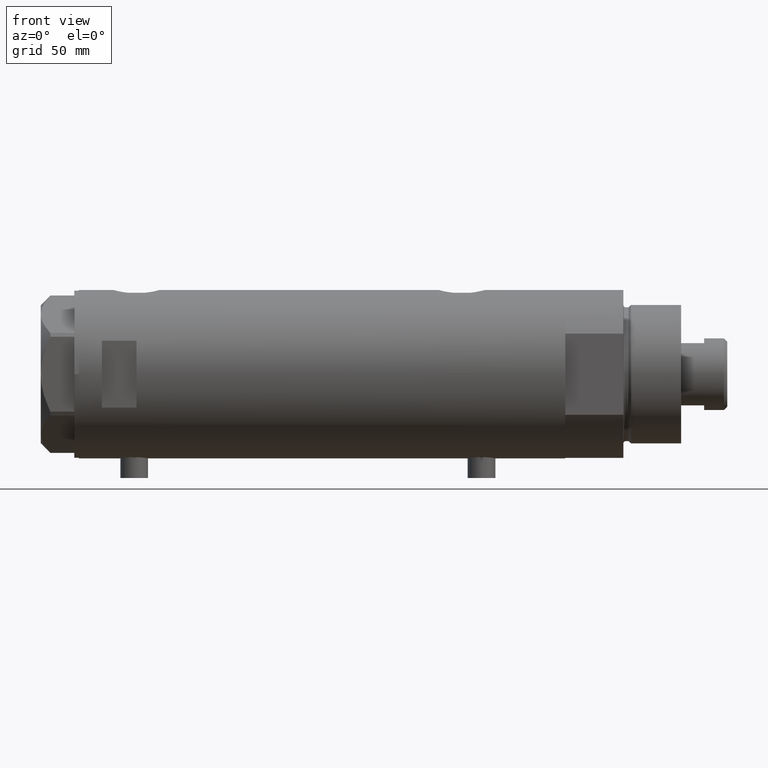
[diagram: clean part render]
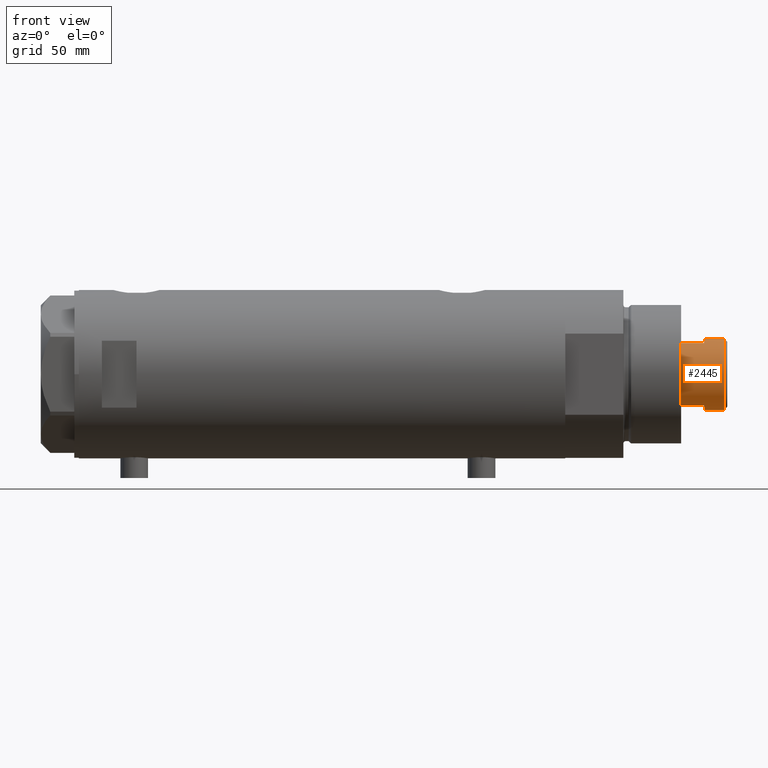
[diagram: same view with one face highlighted and labeled with its STEP entity id]
A machine part, front view. The second image highlights one B-rep face of the part: STEP entity #2445.
In plain terms, the highlighted cylindrical surface (edge-blend (fillet) strip) has radius 15.5 mm, axis along (-1, -0, 0).
Its self-contained STEP definition (entity closure, byte-faithful):
#82 = CIRCLE ( 'NONE', #1284, 15.49999999999999822 ) ;
#187 = VECTOR ( 'NONE', #2639, 1000.000000000000000 ) ;
#232 = ORIENTED_EDGE ( 'NONE', *, *, #4071, .T. ) ;
#266 = CARTESIAN_POINT ( 'NONE',  ( 13.48630416385452691, -7.639999999999800728, 235.0000000000000284 ) ) ;
#277 = DIRECTION ( 'NONE',  ( -1.000000000000000000, 0.000000000000000000, 0.000000000000000000 ) ) ;
#292 = ORIENTED_EDGE ( 'NONE', *, *, #4458, .T. ) ;
#407 = AXIS2_PLACEMENT_3D ( 'NONE', #2352, #4114, #277 ) ;
#463 = CARTESIAN_POINT ( 'NONE',  ( -15.49999999999999822, 0.000000000000000000, 245.0000000000000284 ) ) ;
#480 = VERTEX_POINT ( 'NONE', #1744 ) ;
#580 = VERTEX_POINT ( 'NONE', #2843 ) ;
#641 = DIRECTION ( 'NONE',  ( 1.000000000000000000, 0.000000000000000000, 0.000000000000000000 ) ) ;
#657 = CARTESIAN_POINT ( 'NONE',  ( -13.48630416385452691, -7.640000000000001457, 245.0000000000000284 ) ) ;
#758 = EDGE_CURVE ( 'NONE', #1408, #2294, #3752, .T. ) ;
#878 = ORIENTED_EDGE ( 'NONE', *, *, #758, .T. ) ;
#910 = AXIS2_PLACEMENT_3D ( 'NONE', #3099, #4473, #3515 ) ;
#911 = ORIENTED_EDGE ( 'NONE', *, *, #1883, .T. ) ;
#920 = CARTESIAN_POINT ( 'NONE',  ( 15.49999999999999822, 1.898202538678397163E-15, 245.0000000000000284 ) ) ;
#937 = DIRECTION ( 'NONE',  ( 0.000000000000000000, 0.000000000000000000, 1.000000000000000000 ) ) ;
#1096 = ORIENTED_EDGE ( 'NONE', *, *, #2104, .F. ) ;
#1252 = EDGE_CURVE ( 'NONE', #1986, #4334, #2588, .T. ) ;
#1269 = LINE ( 'NONE', #4364, #187 ) ;
#1284 = AXIS2_PLACEMENT_3D ( 'NONE', #3038, #2361, #641 ) ;
#1349 = VECTOR ( 'NONE', #3437, 1000.000000000000000 ) ;
#1408 = VERTEX_POINT ( 'NONE', #2235 ) ;
#1475 = ORIENTED_EDGE ( 'NONE', *, *, #2776, .F. ) ;
#1659 = CIRCLE ( 'NONE', #3883, 15.49999999999999822 ) ;
#1664 = DIRECTION ( 'NONE',  ( 0.000000000000000000, 0.000000000000000000, 1.000000000000000000 ) ) ;
#1744 = CARTESIAN_POINT ( 'NONE',  ( 15.49999999999999822, 1.898202538678397163E-15, 253.5999999999999943 ) ) ;
#1864 = LINE ( 'NONE', #920, #1349 ) ;
#1876 = CARTESIAN_POINT ( 'NONE',  ( -15.50000000000000178, 0.000000000000000000, 245.0000000000000284 ) ) ;
#1883 = EDGE_CURVE ( 'NONE', #2294, #3781, #1659, .T. ) ;
#1986 = VERTEX_POINT ( 'NONE', #3908 ) ;
#2010 = CARTESIAN_POINT ( 'NONE',  ( -13.48630416385452513, -7.639999999999807834, 235.0000000000000284 ) ) ;
#2032 = DIRECTION ( 'NONE',  ( -0.000000000000000000, -0.000000000000000000, -1.000000000000000000 ) ) ;
#2104 = EDGE_CURVE ( 'NONE', #580, #3781, #1269, .T. ) ;
#2122 = DIRECTION ( 'NONE',  ( -0.000000000000000000, -0.000000000000000000, -1.000000000000000000 ) ) ;
#2235 = CARTESIAN_POINT ( 'NONE',  ( -13.48630416385452335, -7.640000000000004121, 245.0000000000000284 ) ) ;
#2294 = VERTEX_POINT ( 'NONE', #2010 ) ;
#2352 = CARTESIAN_POINT ( 'NONE',  ( 0.000000000000000000, 0.000000000000000000, 245.0000000000000284 ) ) ;
#2361 = DIRECTION ( 'NONE',  ( 0.000000000000000000, 0.000000000000000000, -1.000000000000000000 ) ) ;
#2445 = ADVANCED_FACE ( 'NONE', ( #2741 ), #2673, .T. ) ;
#2588 = LINE ( 'NONE', #463, #3029 ) ;
#2639 = DIRECTION ( 'NONE',  ( -0.000000000000000000, -0.000000000000000000, -1.000000000000000000 ) ) ;
#2673 = CYLINDRICAL_SURFACE ( 'NONE', #407, 15.49999999999999822 ) ;
#2680 = CARTESIAN_POINT ( 'NONE',  ( 0.000000000000000000, 0.000000000000000000, 245.0000000000000284 ) ) ;
#2720 = CARTESIAN_POINT ( 'NONE',  ( 15.50000000000000178, 1.898202538678397557E-15, 245.0000000000000284 ) ) ;
#2741 = FACE_OUTER_BOUND ( 'NONE', #4241, .T. ) ;
#2776 = EDGE_CURVE ( 'NONE', #480, #4419, #1864, .T. ) ;
#2843 = CARTESIAN_POINT ( 'NONE',  ( 13.48630416385453046, -7.639999999999995239, 245.0000000000000284 ) ) ;
#2851 = CIRCLE ( 'NONE', #910, 15.50000000000000000 ) ;
#2953 = ORIENTED_EDGE ( 'NONE', *, *, #4128, .T. ) ;
#3029 = VECTOR ( 'NONE', #2122, 1000.000000000000000 ) ;
#3038 = CARTESIAN_POINT ( 'NONE',  ( 0.000000000000000000, 0.000000000000000000, 253.5999999999999943 ) ) ;
#3099 = CARTESIAN_POINT ( 'NONE',  ( 0.000000000000000000, 0.000000000000000000, 245.0000000000000284 ) ) ;
#3419 = DIRECTION ( 'NONE',  ( 1.000000000000000000, 0.000000000000000000, 0.000000000000000000 ) ) ;
#3437 = DIRECTION ( 'NONE',  ( -0.000000000000000000, -0.000000000000000000, -1.000000000000000000 ) ) ;
#3515 = DIRECTION ( 'NONE',  ( 1.000000000000000000, 0.000000000000000000, 0.000000000000000000 ) ) ;
#3752 = LINE ( 'NONE', #657, #4384 ) ;
#3781 = VERTEX_POINT ( 'NONE', #266 ) ;
#3883 = AXIS2_PLACEMENT_3D ( 'NONE', #4478, #1664, #3419 ) ;
#3908 = CARTESIAN_POINT ( 'NONE',  ( -15.49999999999999822, 0.000000000000000000, 253.5999999999999943 ) ) ;
#3911 = ORIENTED_EDGE ( 'NONE', *, *, #1252, .T. ) ;
#3931 = AXIS2_PLACEMENT_3D ( 'NONE', #2680, #937, #4045 ) ;
#4045 = DIRECTION ( 'NONE',  ( 1.000000000000000000, 0.000000000000000000, 0.000000000000000000 ) ) ;
#4071 = EDGE_CURVE ( 'NONE', #480, #1986, #82, .T. ) ;
#4114 = DIRECTION ( 'NONE',  ( -0.000000000000000000, -0.000000000000000000, -1.000000000000000000 ) ) ;
#4128 = EDGE_CURVE ( 'NONE', #580, #4419, #2851, .T. ) ;
#4241 = EDGE_LOOP ( 'NONE', ( #1475, #232, #3911, #292, #878, #911, #1096, #2953 ) ) ;
#4334 = VERTEX_POINT ( 'NONE', #1876 ) ;
#4364 = CARTESIAN_POINT ( 'NONE',  ( 13.48630416385453046, -7.639999999999995239, 245.0000000000000284 ) ) ;
#4384 = VECTOR ( 'NONE', #2032, 1000.000000000000000 ) ;
#4419 = VERTEX_POINT ( 'NONE', #2720 ) ;
#4437 = CIRCLE ( 'NONE', #3931, 15.50000000000000000 ) ;
#4458 = EDGE_CURVE ( 'NONE', #4334, #1408, #4437, .T. ) ;
#4473 = DIRECTION ( 'NONE',  ( 0.000000000000000000, 0.000000000000000000, 1.000000000000000000 ) ) ;
#4478 = CARTESIAN_POINT ( 'NONE',  ( 0.000000000000000000, 0.000000000000000000, 235.0000000000000284 ) ) ;